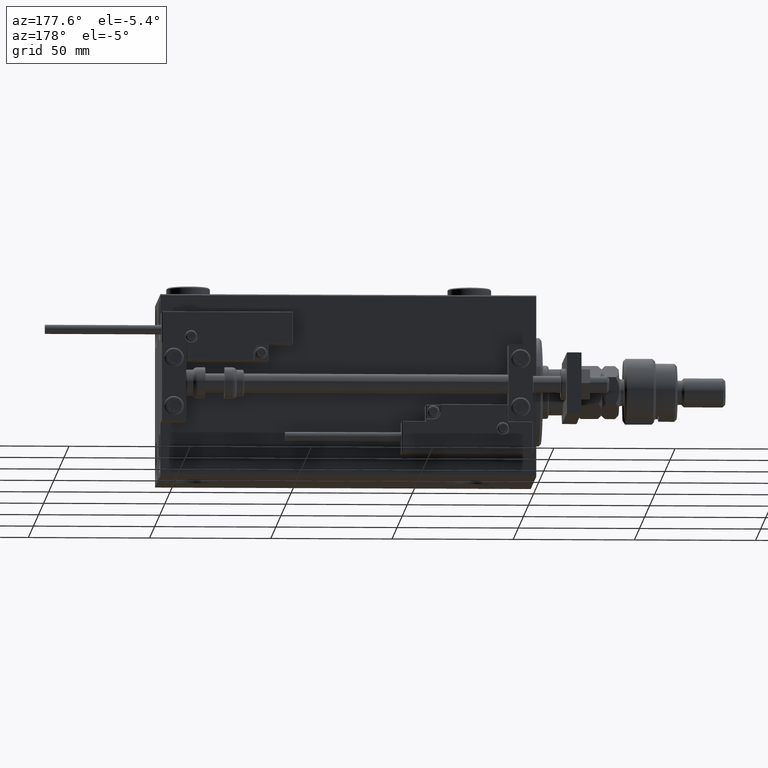
[diagram: clean part render]
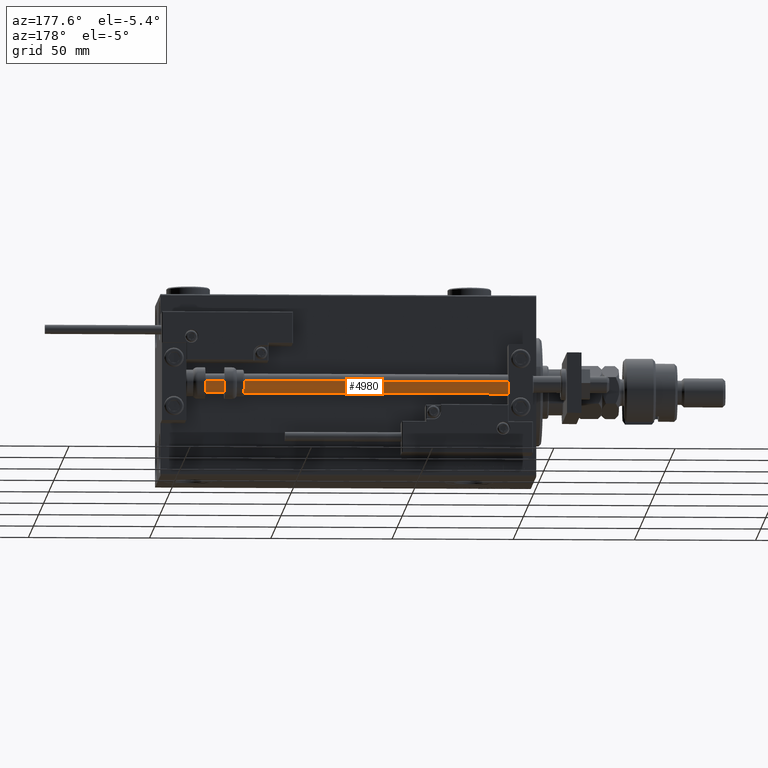
[diagram: same view with one face highlighted and labeled with its STEP entity id]
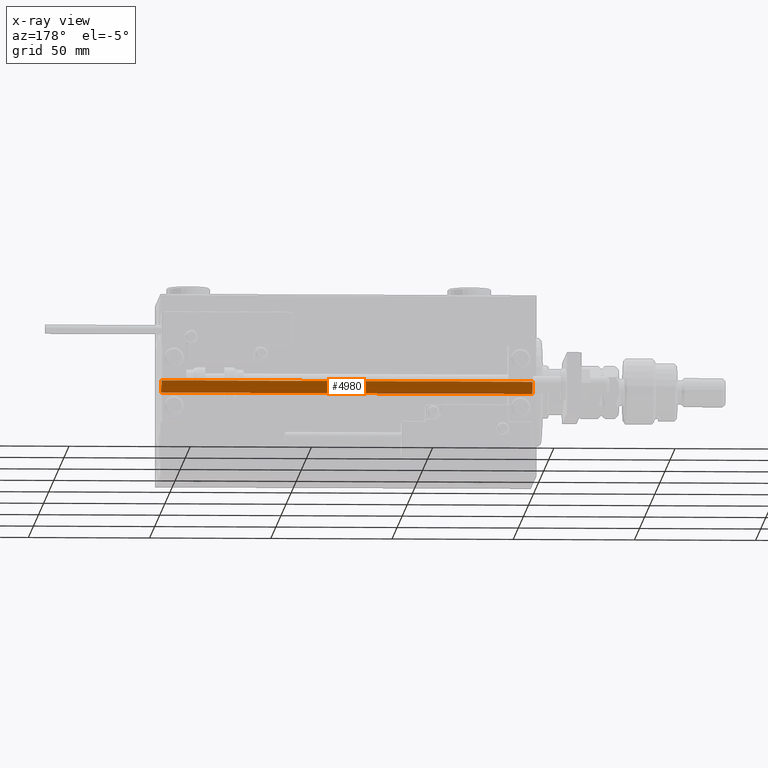
[diagram: x-ray of the same camera — body ghosted, the highlighted face saturated]
A machine part, auxiliary view. The second image highlights one B-rep face of the part: STEP entity #4980.
The next image is the same camera in x-ray: the body ghosted, the highlighted face saturated — about 0% of this face is hidden behind the body in this view.
In plain terms, the highlighted cylindrical surface (edge-blend (fillet) strip) has radius 4 mm, axis along (-1, 0, 0).
Its self-contained STEP definition (entity closure, byte-faithful):
#853 = DIRECTION ( 'NONE',  ( 0.000000000000000000, 0.000000000000000000, 1.000000000000000000 ) ) ;
#1125 = VERTEX_POINT ( 'NONE', #42726 ) ;
#2964 = EDGE_LOOP ( 'NONE', ( #14669, #8315, #43020, #7518 ) ) ;
#4513 = VECTOR ( 'NONE', #21417, 1000.000000000000000 ) ;
#4980 = ADVANCED_FACE ( 'NONE', ( #15695 ), #48995, .T. ) ;
#7518 = ORIENTED_EDGE ( 'NONE', *, *, #51759, .T. ) ;
#8315 = ORIENTED_EDGE ( 'NONE', *, *, #37035, .F. ) ;
#8446 = CARTESIAN_POINT ( 'NONE',  ( -4.000000000000000000, 0.000000000000000000, 155.0000000000000000 ) ) ;
#9081 = DIRECTION ( 'NONE',  ( 1.000000000000000000, 0.000000000000000000, 0.000000000000000000 ) ) ;
#14035 = CARTESIAN_POINT ( 'NONE',  ( 0.000000000000000000, 0.000000000000000000, 155.0000000000000000 ) ) ;
#14669 = ORIENTED_EDGE ( 'NONE', *, *, #25366, .F. ) ;
#15560 = AXIS2_PLACEMENT_3D ( 'NONE', #53632, #20399, #19866 ) ;
#15695 = FACE_OUTER_BOUND ( 'NONE', #2964, .T. ) ;
#17288 = LINE ( 'NONE', #48560, #29441 ) ;
#18242 = CARTESIAN_POINT ( 'NONE',  ( 0.000000000000000000, 0.000000000000000000, 2.000000000000029310 ) ) ;
#19151 = DIRECTION ( 'NONE',  ( -0.000000000000000000, -0.000000000000000000, -1.000000000000000000 ) ) ;
#19866 = DIRECTION ( 'NONE',  ( -1.000000000000000000, 0.000000000000000000, 0.000000000000000000 ) ) ;
#20114 = CARTESIAN_POINT ( 'NONE',  ( -4.000000000000000000, 0.000000000000000000, 2.000000000000029310 ) ) ;
#20399 = DIRECTION ( 'NONE',  ( -0.000000000000000000, -0.000000000000000000, -1.000000000000000000 ) ) ;
#21417 = DIRECTION ( 'NONE',  ( -0.000000000000000000, -0.000000000000000000, -1.000000000000000000 ) ) ;
#22671 = CIRCLE ( 'NONE', #33168, 4.000000000000000000 ) ;
#25366 = EDGE_CURVE ( 'NONE', #40868, #1125, #17288, .T. ) ;
#25426 = DIRECTION ( 'NONE',  ( 1.000000000000000000, 0.000000000000000000, 0.000000000000000000 ) ) ;
#25698 = AXIS2_PLACEMENT_3D ( 'NONE', #14035, #853, #9081 ) ;
#29441 = VECTOR ( 'NONE', #19151, 1000.000000000000000 ) ;
#29442 = CARTESIAN_POINT ( 'NONE',  ( -4.000000000000000000, 0.000000000000000000, 155.0000000000000000 ) ) ;
#32708 = EDGE_CURVE ( 'NONE', #42095, #32773, #50254, .T. ) ;
#32773 = VERTEX_POINT ( 'NONE', #20114 ) ;
#33168 = AXIS2_PLACEMENT_3D ( 'NONE', #18242, #51785, #25426 ) ;
#36260 = CIRCLE ( 'NONE', #25698, 4.000000000000000000 ) ;
#37035 = EDGE_CURVE ( 'NONE', #42095, #40868, #36260, .T. ) ;
#37212 = CARTESIAN_POINT ( 'NONE',  ( 4.000000000000000000, 4.898587196589412829E-16, 155.0000000000000000 ) ) ;
#40868 = VERTEX_POINT ( 'NONE', #37212 ) ;
#42095 = VERTEX_POINT ( 'NONE', #29442 ) ;
#42726 = CARTESIAN_POINT ( 'NONE',  ( 4.000000000000000000, 4.898587196589412829E-16, 2.000000000000029310 ) ) ;
#43020 = ORIENTED_EDGE ( 'NONE', *, *, #32708, .T. ) ;
#48560 = CARTESIAN_POINT ( 'NONE',  ( 4.000000000000000000, 4.898587196589412829E-16, 155.0000000000000000 ) ) ;
#48995 = CYLINDRICAL_SURFACE ( 'NONE', #15560, 4.000000000000000000 ) ;
#50254 = LINE ( 'NONE', #8446, #4513 ) ;
#51759 = EDGE_CURVE ( 'NONE', #32773, #1125, #22671, .T. ) ;
#51785 = DIRECTION ( 'NONE',  ( -0.000000000000000000, -0.000000000000000000, 1.000000000000000000 ) ) ;
#53632 = CARTESIAN_POINT ( 'NONE',  ( 0.000000000000000000, 0.000000000000000000, 155.0000000000000000 ) ) ;